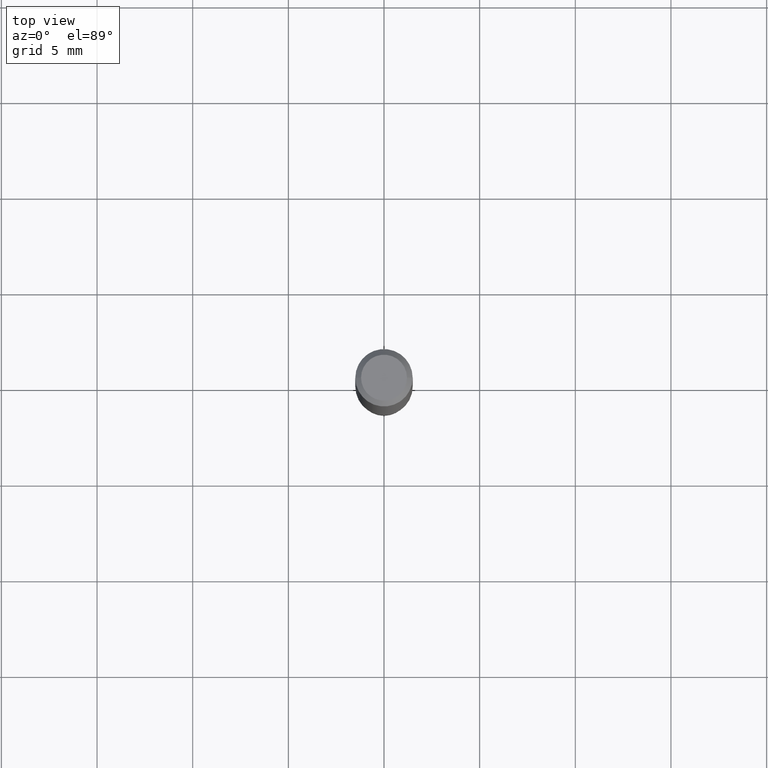
[diagram: clean part render]
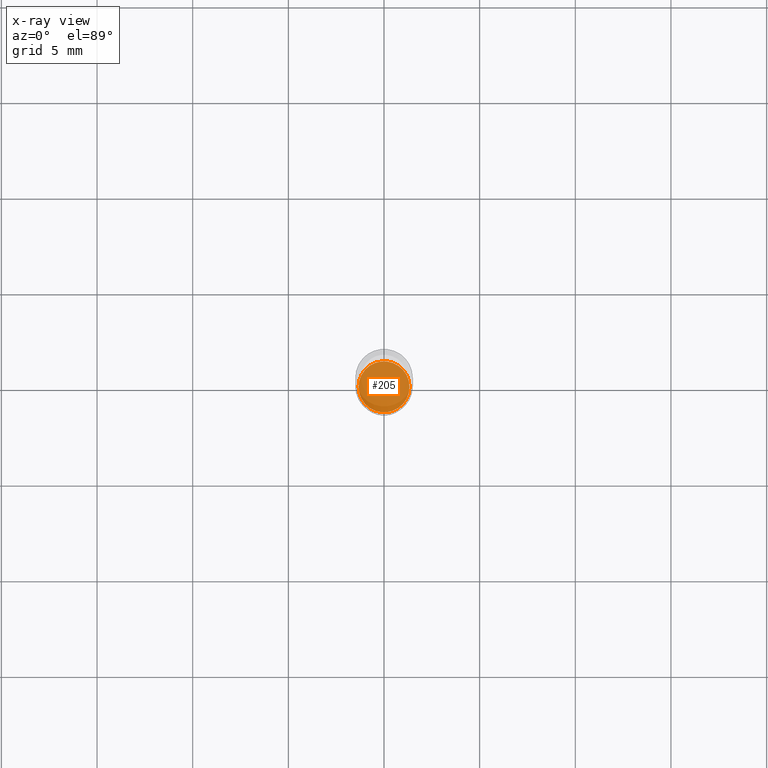
[diagram: x-ray — body ghosted, one internal face saturated and labeled with its STEP entity id]
A machine part, top view, then the same camera in x-ray: the body is ghosted and one INTERNAL B-rep face — a face not visible from any outside direction — is saturated and labeled: STEP entity #205.
In plain terms, the highlighted planar face has unit normal (-0, 0, 1).
Its self-contained STEP definition (entity closure, byte-faithful):
#16 = FACE_OUTER_BOUND ( 'NONE', #413, .T. ) ;
#23 = DIRECTION ( 'NONE',  ( 1.000000000000000000, -6.982962677686262766E-15, 0.000000000000000000 ) ) ;
#32 = CARTESIAN_POINT ( 'NONE',  ( 2.676565608369631234E-29, -3.821426325363821984E-15, -1.094499999999999806 ) ) ;
#38 = CIRCLE ( 'NONE', #338, 0.05244999999999998969 ) ;
#87 = CARTESIAN_POINT ( 'NONE',  ( 0.05244999999999998969, -4.187682717808466844E-15, -1.094499999999999806 ) ) ;
#99 = ORIENTED_EDGE ( 'NONE', *, *, #287, .F. ) ;
#164 = AXIS2_PLACEMENT_3D ( 'NONE', #319, #167, #206 ) ;
#167 = DIRECTION ( 'NONE',  ( -2.438088387897960049E-29, 3.491481338843145188E-15, 1.000000000000000000 ) ) ;
#176 = VERTEX_POINT ( 'NONE', #87 ) ;
#204 = CARTESIAN_POINT ( 'NONE',  ( 2.676565608369631234E-29, -3.821426325363821984E-15, -1.094499999999999806 ) ) ;
#205 = ADVANCED_FACE ( 'NONE', ( #16 ), #388, .F. ) ;
#206 = DIRECTION ( 'NONE',  ( 1.000000000000000000, -6.982962677686265922E-15, 4.876176775795935793E-29 ) ) ;
#212 = VERTEX_POINT ( 'NONE', #469 ) ;
#258 = DIRECTION ( 'NONE',  ( -2.445468806185136597E-29, 3.491481338843145583E-15, 1.000000000000000000 ) ) ;
#287 = EDGE_CURVE ( 'NONE', #212, #176, #38, .T. ) ;
#294 = ORIENTED_EDGE ( 'NONE', *, *, #470, .F. ) ;
#308 = DIRECTION ( 'NONE',  ( 1.000000000000000000, -6.982962677686262766E-15, 0.000000000000000000 ) ) ;
#319 = CARTESIAN_POINT ( 'NONE',  ( 4.666948037326907598E-29, -9.710854015644555448E-16, -1.094499999999999806 ) ) ;
#338 = AXIS2_PLACEMENT_3D ( 'NONE', #204, #409, #23 ) ;
#388 = PLANE ( 'NONE',  #164 ) ;
#409 = DIRECTION ( 'NONE',  ( -2.445468806185136597E-29, 3.491481338843145583E-15, 1.000000000000000000 ) ) ;
#413 = EDGE_LOOP ( 'NONE', ( #294, #99 ) ) ;
#448 = CIRCLE ( 'NONE', #479, 0.05244999999999998969 ) ;
#469 = CARTESIAN_POINT ( 'NONE',  ( -0.05244999999999998969, -3.446097433283538260E-15, -1.094499999999999806 ) ) ;
#470 = EDGE_CURVE ( 'NONE', #176, #212, #448, .T. ) ;
#479 = AXIS2_PLACEMENT_3D ( 'NONE', #32, #258, #308 ) ;